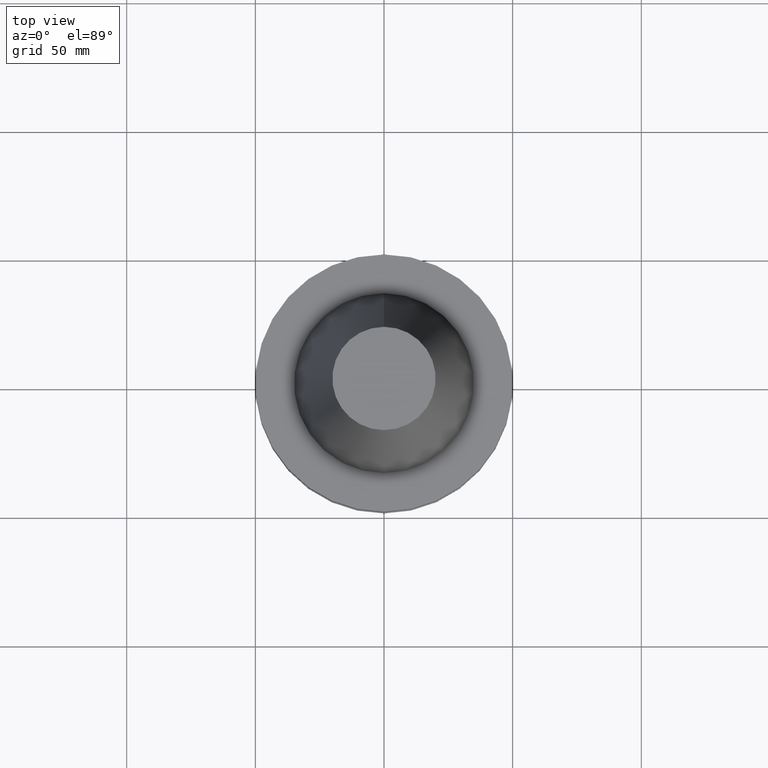
[diagram: clean part render]
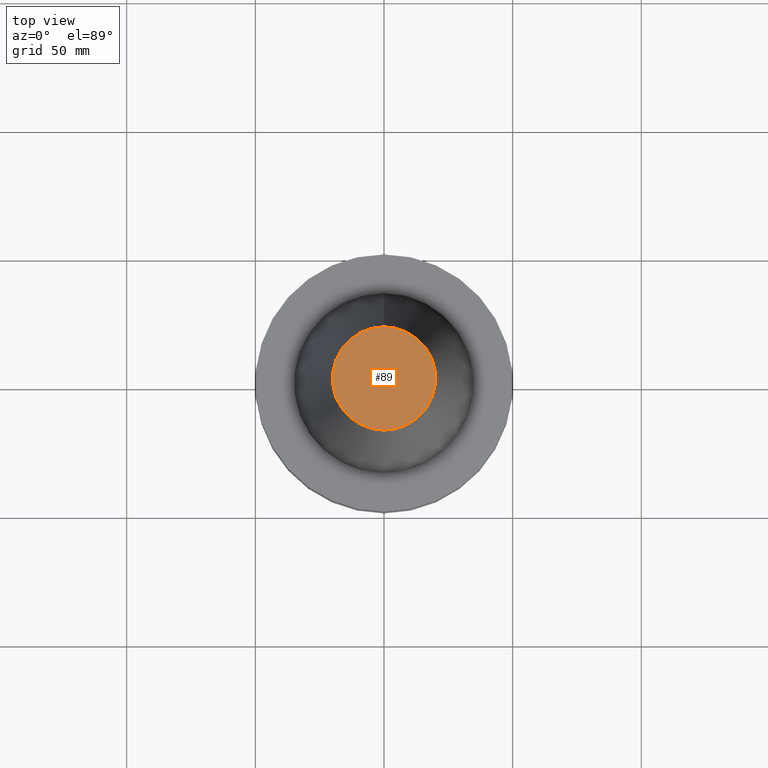
[diagram: same view with one face highlighted and labeled with its STEP entity id]
A machine part, top view. The second image highlights one B-rep face of the part: STEP entity #89.
In plain terms, the highlighted planar face has unit normal (-0, -0, 1).
Its self-contained STEP definition (entity closure, byte-faithful):
#53=EDGE_CURVE('Unnamed[1]',#137,#137,#138,.T.);
#89=ADVANCED_FACE('Unnamed[1]',(#190),#191,.T.);
#137=VERTEX_POINT('',#247);
#138=CIRCLE('',#248,20.0791666658118);
#190=FACE_OUTER_BOUND('',#314,.T.);
#191=PLANE('',#315);
#247=CARTESIAN_POINT('',(-6.23345220766003E-015,20.0791666658118,101.8));
#248=AXIS2_PLACEMENT_3D('',#373,#374,#375);
#314=EDGE_LOOP('',(#428));
#315=AXIS2_PLACEMENT_3D('',#429,#430,#431);
#373=CARTESIAN_POINT('',(-6.23345220766003E-015,-1.24669044153201E-014,101.8));
#374=DIRECTION('',(6.12323399573677E-017,1.22464679914735E-016,-1.0));
#375=DIRECTION('',(-1.23259516440783E-032,1.0,1.22464679914735E-016));
#428=ORIENTED_EDGE('',*,*,#53,.F.);
#429=CARTESIAN_POINT('',(-6.23345220766003E-015,10.0395833329059,101.8));
#430=DIRECTION('',(-6.12323399573677E-017,-1.22464679914735E-016,1.0));
#431=DIRECTION('',(1.23259516440783E-032,-1.0,-1.22464679914735E-016));